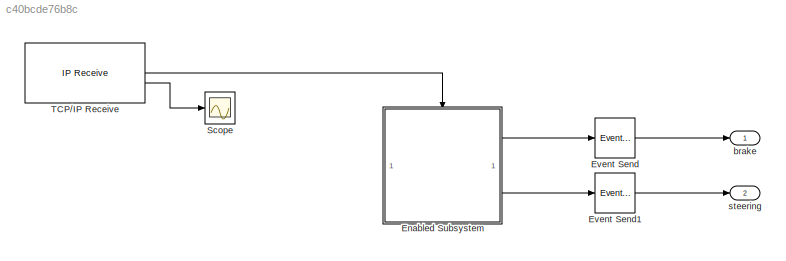
MODEL slx_c40bcde76b8c
KIND model
CONFIG AbsTol = auto
CONFIG EnableMultiTasking = off
CONFIG FixedStep = auto
CONFIG MaxStep = auto
CONFIG MinStep = auto
CONFIG RelTol = 1e-3
CONFIG SampleTimeConstraint = Unconstrained
CONFIG SolverName = FixedStepAuto
CONFIG StartTime = 0.0
CONFIG StopTime = 10.0
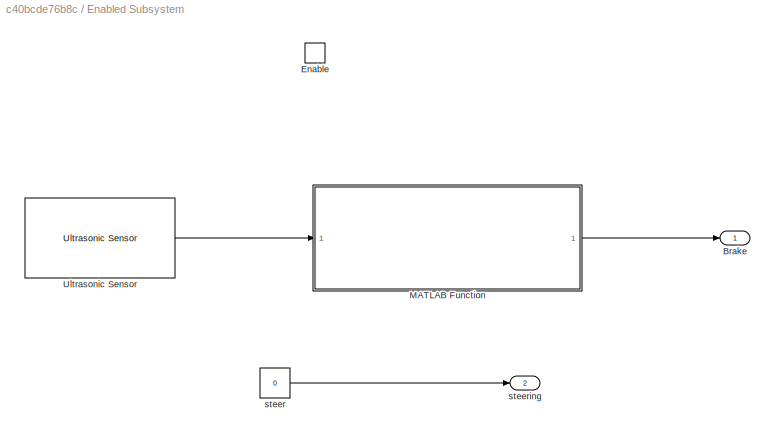
BLOCK [SubSystem] Enabled Subsystem
  TreatAsAtomicUnit = on
BLOCK [Outport] Enabled Subsystem/Brake
  InputPortMessageModes = m
BLOCK [EnablePort] Enabled Subsystem/Enable
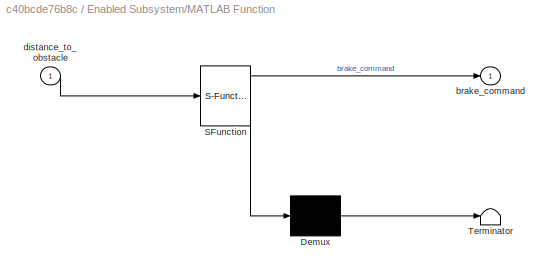
BLOCK [SubSystem] Enabled Subsystem/MATLAB Function
  ErrorFcn = Stateflow.Translate.translate
  PermitHierarchicalResolution = ExplicitOnly
  SFBlockType = MATLAB Function
  TreatAsAtomicUnit = on
BLOCK [Demux] Enabled Subsystem/MATLAB Function/ Demux 
  Outputs = 1
BLOCK [S-Function] Enabled Subsystem/MATLAB Function/ SFunction 
  EnableBusSupport = on
  FunctionName = sf_sfun
  PortCounts = [1 2]
  SFcnIsStateOwnerBlock = off
  SFunctionDeploymentMode = off
  Tag = Stateflow S-Function 2
BLOCK [Terminator] Enabled Subsystem/MATLAB Function/ Terminator 
BLOCK [Outport] Enabled Subsystem/MATLAB Function/brake_command
BLOCK [Inport] Enabled Subsystem/MATLAB Function/distance_to_obstacle
BLOCK [Reference] Enabled Subsystem/Ultrasonic Sensor  REF=raspberrypisensorlib/Ultrasonic Sensor
  SourceBlock = raspberrypisensorlib/Ultrasonic Sensor
  SourceType = sensors.raspberrypi.UltrasonicBlock
BLOCK [Constant] Enabled Subsystem/steer
  Value = 0
BLOCK [Outport] Enabled Subsystem/steering
  Port = 2
BLOCK [Reference] Event Send  REF=autosarlibaprouting/Event Send
  SourceBlock = autosarlibaprouting/Event Send
  SourceType = Event Send
BLOCK [Reference] Event Send1  REF=autosarlibaprouting/Event Send
  SourceBlock = autosarlibaprouting/Event Send
  SourceType = Event Send
BLOCK [Scope] Scope
  Floating = off
  NumInputPorts = 1
  ScopeSpecificationString = Simulink.scopes.TimeScopeBlockCfg('CurrentConfiguration', extmgr.ConfigurationSet(extmgr.Configuration('Core','General UI',true),extmgr.Configuration('Core','Source UI',true),extmgr.Configuration('Sources','WiredSimulink',true),extmgr.Configuration('Visuals','Time Domain',true),extmgr.Configuration('Tools','Plot Navigation',true),extmgr.Configuration('Tools','Measurements',true)),'Version','2024a'...<+1ch>
BLOCK [Reference] TCP//IP Receive  REF=raspberrypiNetworklib/TCP//IP Receive
  SourceBlock = raspberrypiNetworklib/TCP//IP Receive
  SourceType = codertarget.raspi.internal.RaspiTCPReceive
BLOCK [Outport] brake
  InputPortMessageModes = m
BLOCK [Outport] steering
  InputPortMessageModes = m
  Port = 2
LINE Enabled Subsystem/MATLAB Function:1 -> Enabled Subsystem/Brake:1
LINE Enabled Subsystem/Ultrasonic Sensor:1 -> Enabled Subsystem/MATLAB Function:1
LINE Enabled Subsystem/steer:1 -> Enabled Subsystem/steering:1
LINE Enabled Subsystem:1 -> Event Send:1
LINE Enabled Subsystem:2 -> Event Send1:1
LINE Event Send1:1 -> steering:1
LINE Event Send:1 -> brake:1
LINE TCP//IP Receive:1 -> Enabled Subsystem:enable
LINE TCP//IP Receive:2 -> Scope:1
CHART Enabled
Subsystem/MATLAB Function states=1 transitions=1
  STATE_LABEL 'eML_blk_kernel()'
  STATE_LABEL 'SCRIPT:\nfunction brake_command = aeb_system(distance_to_obstacle)\n    % Define parameters\n    threshold_distance = 0.12; % Threshold distance for AEB activation (in meters)\n    % min_speed = 10; % Minimum vehicle speed for AEB activation (in m/s)\n\n    % Check if AEB should activate based on distance and speed\n    if distance_to_obstacle < threshold_distance\n        brake_command = 1.0; % Activate ...<+81ch>'
CHART  states=0 transitions=0
